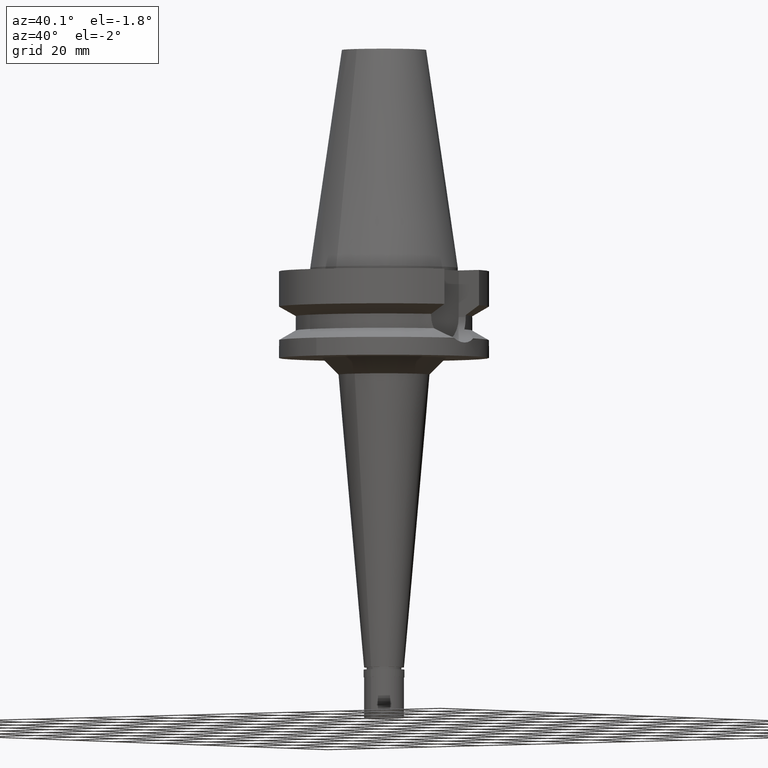
[diagram: clean part render]
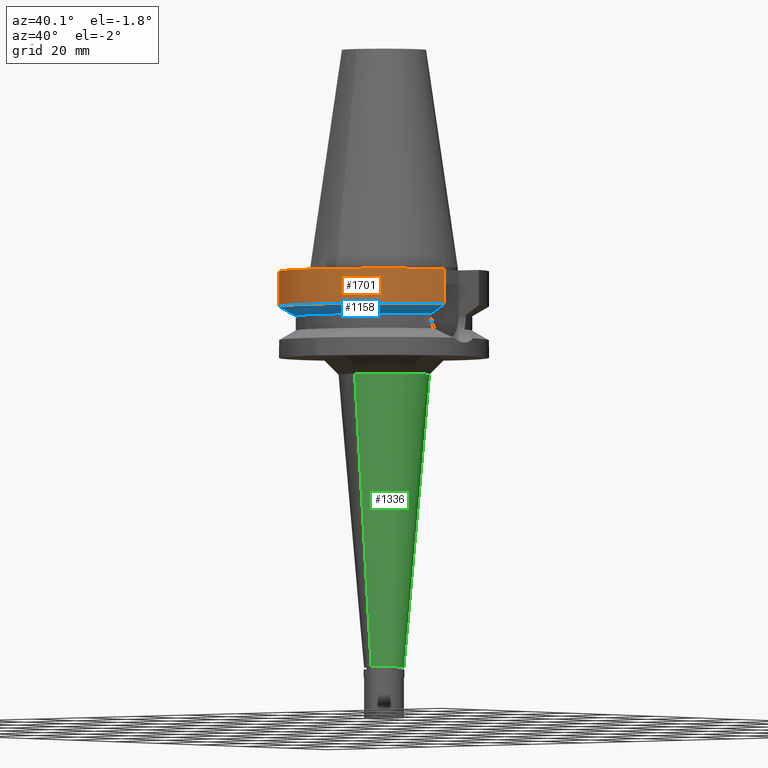
[diagram: same view with three faces highlighted in distinct colors, each labeled with its STEP entity id]
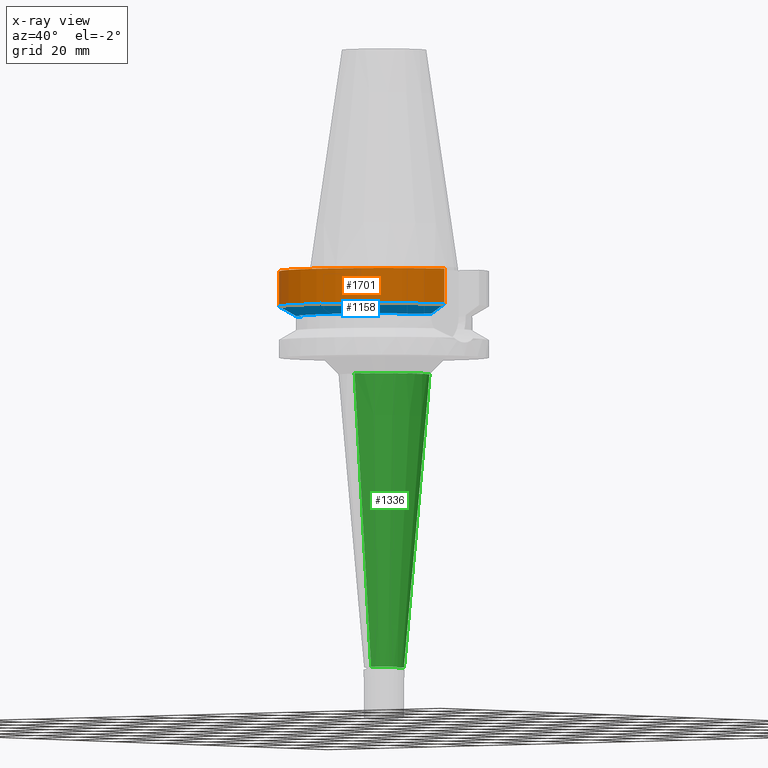
[diagram: x-ray of the same camera — body ghosted, the three highlighted faces saturated]
A machine part, auxiliary view with three faces highlighted in distinct colors.
The next image is the same camera in x-ray (body ghosted, the three faces saturated) — at least one of them is partly hidden behind the body in this view.
Their STEP definitions:

[orange] entity #1701 — the highlighted cylindrical surface (partial cylindrical patch) has radius 31.5 mm, axis along (0, 0, -1).
#86 = CARTESIAN_POINT ( 'NONE',  ( 30.45402272279000044, -8.050000000000000711, -1.000000000000000000 ) ) ;
#116 = EDGE_LOOP ( 'NONE', ( #2487, #929, #1364, #2746 ) ) ;
#156 = DIRECTION ( 'NONE',  ( 1.805963320780990496E-08, -6.832178659850962840E-08, 0.9999999999999974465 ) ) ;
#253 = EDGE_CURVE ( 'NONE', #1463, #392, #2118, .T. ) ;
#392 = VERTEX_POINT ( 'NONE', #2911 ) ;
#576 = CYLINDRICAL_SURFACE ( 'NONE', #1239, 31.50000000000000000 ) ;
#637 = CARTESIAN_POINT ( 'NONE',  ( 0.0000000000000000000, 2.145826121465999692E-14, 75.21999999999999886 ) ) ;
#662 = VECTOR ( 'NONE', #156, 1000.000000000000114 ) ;
#748 = EDGE_CURVE ( 'NONE', #938, #392, #1621, .T. ) ;
#843 = LINE ( 'NONE', #2223, #662 ) ;
#929 = ORIENTED_EDGE ( 'NONE', *, *, #748, .T. ) ;
#938 = VERTEX_POINT ( 'NONE', #1736 ) ;
#988 = VERTEX_POINT ( 'NONE', #2224 ) ;
#1115 = DIRECTION ( 'NONE',  ( 0.0000000000000000000, -1.000000000000000000, 0.0000000000000000000 ) ) ;
#1239 = AXIS2_PLACEMENT_3D ( 'NONE', #637, #1278, #2479 ) ;
#1278 = DIRECTION ( 'NONE',  ( 0.0000000000000000000, 0.0000000000000000000, -1.000000000000000000 ) ) ;
#1304 = DIRECTION ( 'NONE',  ( 0.0000000000000000000, 0.0000000000000000000, 1.000000000000000000 ) ) ;
#1359 = EDGE_CURVE ( 'NONE', #1463, #988, #1666, .T. ) ;
#1364 = ORIENTED_EDGE ( 'NONE', *, *, #253, .F. ) ;
#1407 = CARTESIAN_POINT ( 'NONE',  ( 30.45402272279000044, -8.050000000000000711, -1.000000000000000000 ) ) ;
#1463 = VERTEX_POINT ( 'NONE', #1407 ) ;
#1538 = FACE_OUTER_BOUND ( 'NONE', #116, .T. ) ;
#1568 = AXIS2_PLACEMENT_3D ( 'NONE', #1983, #2905, #2459 ) ;
#1621 = CIRCLE ( 'NONE', #2003, 31.50000000000000000 ) ;
#1666 = CIRCLE ( 'NONE', #1568, 31.50000000000000000 ) ;
#1701 = ADVANCED_FACE ( 'NONE', ( #1538 ), #576, .T. ) ;
#1736 = CARTESIAN_POINT ( 'NONE',  ( -30.45402291359999936, -8.049999278145000048, -11.56551215426000034 ) ) ;
#1889 = DIRECTION ( 'NONE',  ( -1.036721332146017624E-07, -3.922023857780068566E-07, -0.9999999999999177325 ) ) ;
#1983 = CARTESIAN_POINT ( 'NONE',  ( 0.0000000000000000000, 2.145826121465999692E-14, -1.000000000000000000 ) ) ;
#2003 = AXIS2_PLACEMENT_3D ( 'NONE', #2230, #1304, #1115 ) ;
#2118 = LINE ( 'NONE', #86, #2535 ) ;
#2223 = CARTESIAN_POINT ( 'NONE',  ( -30.45402291359999936, -8.049999278145000048, -11.56551215426000034 ) ) ;
#2224 = CARTESIAN_POINT ( 'NONE',  ( -30.45402272279000044, -8.050000000000000711, -1.000000000000000000 ) ) ;
#2230 = CARTESIAN_POINT ( 'NONE',  ( 0.0000000000000000000, 1.065333950388000029E-14, -11.56550565266999975 ) ) ;
#2459 = DIRECTION ( 'NONE',  ( 0.0000000000000000000, -1.000000000000000000, 0.0000000000000000000 ) ) ;
#2479 = DIRECTION ( 'NONE',  ( 0.0000000000000000000, -1.000000000000000000, 0.0000000000000000000 ) ) ;
#2487 = ORIENTED_EDGE ( 'NONE', *, *, #2599, .F. ) ;
#2535 = VECTOR ( 'NONE', #1889, 1000.000000000000114 ) ;
#2599 = EDGE_CURVE ( 'NONE', #938, #988, #843, .T. ) ;
#2746 = ORIENTED_EDGE ( 'NONE', *, *, #1359, .T. ) ;
#2905 = DIRECTION ( 'NONE',  ( 0.0000000000000000000, 0.0000000000000000000, -1.000000000000000000 ) ) ;
#2911 = CARTESIAN_POINT ( 'NONE',  ( 30.45402272279000044, -8.049999999999000622, -11.56550565266999975 ) ) ;

[blue] entity #1158 — the highlighted conical surface has half-angle 60 deg.
#392 = VERTEX_POINT ( 'NONE', #2911 ) ;
#467 = CARTESIAN_POINT ( 'NONE',  ( 25.24772266958000344, -8.050000000000000711, -14.45225699861000024 ) ) ;
#746 = EDGE_LOOP ( 'NONE', ( #1942, #1849, #2169, #1178 ) ) ;
#748 = EDGE_CURVE ( 'NONE', #938, #392, #1621, .T. ) ;
#818 = CARTESIAN_POINT ( 'NONE',  ( -30.45402291359999936, -8.049999278145000048, -11.56551215426000034 ) ) ;
#838 = EDGE_CURVE ( 'NONE', #1447, #1363, #2639, .T. ) ;
#888 = DIRECTION ( 'NONE',  ( 0.0000000000000000000, 1.000000000000000000, 0.0000000000000000000 ) ) ;
#910 = CARTESIAN_POINT ( 'NONE',  ( 0.0000000000000000000, 1.065333950388000029E-14, -13.00888132564000088 ) ) ;
#935 = DIRECTION ( 'NONE',  ( 0.0000000000000000000, 0.0000000000000000000, 1.000000000000000000 ) ) ;
#938 = VERTEX_POINT ( 'NONE', #1736 ) ;
#1115 = DIRECTION ( 'NONE',  ( 0.0000000000000000000, -1.000000000000000000, 0.0000000000000000000 ) ) ;
#1158 = ADVANCED_FACE ( 'NONE', ( #1163 ), #2822, .T. ) ;
#1163 = FACE_OUTER_BOUND ( 'NONE', #746, .T. ) ;
#1178 = ORIENTED_EDGE ( 'NONE', *, *, #748, .F. ) ;
#1202 = CARTESIAN_POINT ( 'NONE',  ( -25.24772413117000269, -8.049995415925998543, -14.45229202691999859 ) ) ;
#1252 = CARTESIAN_POINT ( 'NONE',  ( 26.83757729566509909, -8.050003177078902894, -13.57772965556342015 ) ) ;
#1304 = DIRECTION ( 'NONE',  ( 0.0000000000000000000, 0.0000000000000000000, 1.000000000000000000 ) ) ;
#1363 = VERTEX_POINT ( 'NONE', #1202 ) ;
#1447 = VERTEX_POINT ( 'NONE', #467 ) ;
#1621 = CIRCLE ( 'NONE', #2003, 31.50000000000000000 ) ;
#1686 = EDGE_CURVE ( 'NONE', #938, #1363, #2250, .T. ) ;
#1710 = AXIS2_PLACEMENT_3D ( 'NONE', #2249, #2940, #2674 ) ;
#1736 = CARTESIAN_POINT ( 'NONE',  ( -30.45402291359999936, -8.049999278145000048, -11.56551215426000034 ) ) ;
#1775 = CARTESIAN_POINT ( 'NONE',  ( -28.57292328992029695, -8.049998557230054530, -12.61549605555037878 ) ) ;
#1821 = B_SPLINE_CURVE_WITH_KNOTS ( 'NONE', 3,
 ( #1906, #1252, #2383, #2400 ),
 .UNSPECIFIED., .F., .F.,
 ( 4, 4 ),
 ( 0.0000000000000000000, 1.000000000000000000 ),
 .UNSPECIFIED. ) ;
#1849 = ORIENTED_EDGE ( 'NONE', *, *, #838, .F. ) ;
#1906 = CARTESIAN_POINT ( 'NONE',  ( 25.24772266958000344, -8.050000000000000711, -14.45225699861000024 ) ) ;
#1942 = ORIENTED_EDGE ( 'NONE', *, *, #1686, .T. ) ;
#2003 = AXIS2_PLACEMENT_3D ( 'NONE', #2230, #1304, #1115 ) ;
#2169 = ORIENTED_EDGE ( 'NONE', *, *, #2300, .T. ) ;
#2230 = CARTESIAN_POINT ( 'NONE',  ( 0.0000000000000000000, 1.065333950388000029E-14, -11.56550565266999975 ) ) ;
#2249 = CARTESIAN_POINT ( 'NONE',  ( 0.0000000000000000000, 1.065333950388000029E-14, -14.45225699861000024 ) ) ;
#2250 = B_SPLINE_CURVE_WITH_KNOTS ( 'NONE', 3,
 ( #818, #1775, #2901, #2696 ),
 .UNSPECIFIED., .F., .F.,
 ( 4, 4 ),
 ( 0.0000000000000000000, 1.000000000000000000 ),
 .UNSPECIFIED. ) ;
#2300 = EDGE_CURVE ( 'NONE', #1447, #392, #1821, .T. ) ;
#2383 = CARTESIAN_POINT ( 'NONE',  ( 28.57294951018793228, -8.050008280886975953, -12.61547990703861721 ) ) ;
#2400 = CARTESIAN_POINT ( 'NONE',  ( 30.45402272279000044, -8.049999999999000622, -11.56550565266999975 ) ) ;
#2639 = CIRCLE ( 'NONE', #1710, 26.50000000000000711 ) ;
#2674 = DIRECTION ( 'NONE',  ( 0.9527442516822307583, -0.3037735849057093818, 0.0000000000000000000 ) ) ;
#2696 = CARTESIAN_POINT ( 'NONE',  ( -25.24772413117000269, -8.049995415925998543, -14.45229202691999859 ) ) ;
#2822 = CONICAL_SURFACE ( 'NONE', #2910, 29.00000000000000000, 1.047197551196400456 ) ;
#2901 = CARTESIAN_POINT ( 'NONE',  ( -26.83754615931950838, -8.049990821700770738, -13.57774888142629699 ) ) ;
#2910 = AXIS2_PLACEMENT_3D ( 'NONE', #910, #935, #888 ) ;
#2911 = CARTESIAN_POINT ( 'NONE',  ( 30.45402272279000044, -8.049999999999000622, -11.56550565266999975 ) ) ;
#2940 = DIRECTION ( 'NONE',  ( 0.0000000000000000000, 0.0000000000000000000, -1.000000000000000000 ) ) ;

[green] entity #1336 — the highlighted conical surface has half-angle 5 deg.
#38 = CIRCLE ( 'NONE', #1673, 6.000000000000000000 ) ;
#96 = CARTESIAN_POINT ( 'NONE',  ( 0.0000000000000000000, -13.68150465758000145, -32.00000000000000000 ) ) ;
#199 = LINE ( 'NONE', #429, #408 ) ;
#221 = VERTEX_POINT ( 'NONE', #2359 ) ;
#228 = ORIENTED_EDGE ( 'NONE', *, *, #2274, .T. ) ;
#264 = CARTESIAN_POINT ( 'NONE',  ( 0.0000000000000000000, 0.0000000000000000000, -32.00000000000000000 ) ) ;
#395 = ORIENTED_EDGE ( 'NONE', *, *, #2684, .F. ) ;
#408 = VECTOR ( 'NONE', #1129, 1000.000000000000227 ) ;
#429 = CARTESIAN_POINT ( 'NONE',  ( 0.0000000000000000000, -13.68150465758000145, -32.00000000000000000 ) ) ;
#436 = ORIENTED_EDGE ( 'NONE', *, *, #878, .T. ) ;
#473 = CARTESIAN_POINT ( 'NONE',  ( 0.0000000000000000000, 13.68150465758000145, -32.00000000000000000 ) ) ;
#524 = CARTESIAN_POINT ( 'NONE',  ( 0.0000000000000000000, 6.000000000000000000, -119.7999999999999972 ) ) ;
#738 = DIRECTION ( 'NONE',  ( 0.0000000000000000000, 0.0000000000000000000, 1.000000000000000000 ) ) ;
#860 = CIRCLE ( 'NONE', #2541, 13.68150465758000145 ) ;
#865 = EDGE_CURVE ( 'NONE', #2243, #2385, #1079, .T. ) ;
#870 = ORIENTED_EDGE ( 'NONE', *, *, #865, .F. ) ;
#878 = EDGE_CURVE ( 'NONE', #2894, #221, #199, .T. ) ;
#1074 = DIRECTION ( 'NONE',  ( 0.0000000000000000000, 0.0000000000000000000, 1.000000000000000000 ) ) ;
#1079 = LINE ( 'NONE', #2907, #1326 ) ;
#1129 = DIRECTION ( 'NONE',  ( 0.0000000000000000000, 0.08715574274768382590, -0.9961946980917432137 ) ) ;
#1326 = VECTOR ( 'NONE', #1771, 1000.000000000000227 ) ;
#1336 = ADVANCED_FACE ( 'NONE', ( #2687 ), #2439, .T. ) ;
#1673 = AXIS2_PLACEMENT_3D ( 'NONE', #1978, #738, #2320 ) ;
#1771 = DIRECTION ( 'NONE',  ( 0.0000000000000000000, -0.08715574274768382590, -0.9961946980917432137 ) ) ;
#1839 = DIRECTION ( 'NONE',  ( 0.0000000000000000000, -1.000000000000000000, 0.0000000000000000000 ) ) ;
#1978 = CARTESIAN_POINT ( 'NONE',  ( 0.0000000000000000000, 0.0000000000000000000, -119.7999999999999972 ) ) ;
#2029 = CARTESIAN_POINT ( 'NONE',  ( 0.0000000000000000000, 0.0000000000000000000, -75.89999999999999147 ) ) ;
#2144 = AXIS2_PLACEMENT_3D ( 'NONE', #2029, #1074, #2892 ) ;
#2243 = VERTEX_POINT ( 'NONE', #473 ) ;
#2274 = EDGE_CURVE ( 'NONE', #221, #2385, #38, .T. ) ;
#2302 = DIRECTION ( 'NONE',  ( 0.0000000000000000000, 0.0000000000000000000, 1.000000000000000000 ) ) ;
#2320 = DIRECTION ( 'NONE',  ( 0.0000000000000000000, -1.000000000000000000, 0.0000000000000000000 ) ) ;
#2359 = CARTESIAN_POINT ( 'NONE',  ( 0.0000000000000000000, -6.000000000000000000, -119.7999999999999972 ) ) ;
#2385 = VERTEX_POINT ( 'NONE', #524 ) ;
#2439 = CONICAL_SURFACE ( 'NONE', #2144, 9.840752328787999659, 0.08726646259969973729 ) ;
#2541 = AXIS2_PLACEMENT_3D ( 'NONE', #264, #2302, #1839 ) ;
#2684 = EDGE_CURVE ( 'NONE', #2894, #2243, #860, .T. ) ;
#2687 = FACE_OUTER_BOUND ( 'NONE', #2759, .T. ) ;
#2759 = EDGE_LOOP ( 'NONE', ( #395, #436, #228, #870 ) ) ;
#2892 = DIRECTION ( 'NONE',  ( 0.0000000000000000000, 1.000000000000000000, 0.0000000000000000000 ) ) ;
#2894 = VERTEX_POINT ( 'NONE', #96 ) ;
#2907 = CARTESIAN_POINT ( 'NONE',  ( 0.0000000000000000000, 13.68150465758000145, -32.00000000000000000 ) ) ;